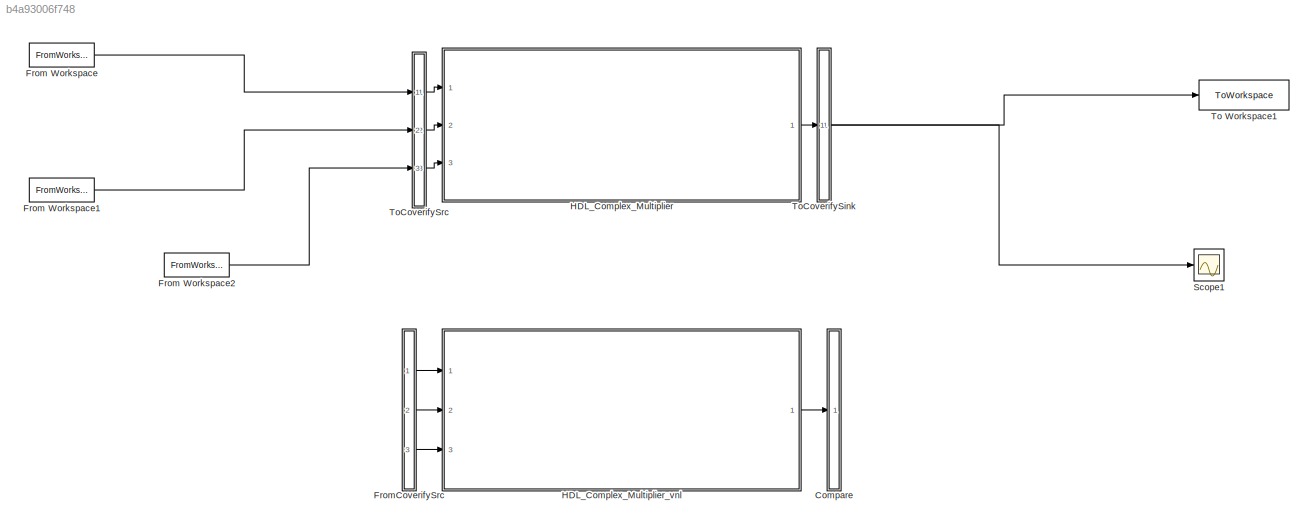
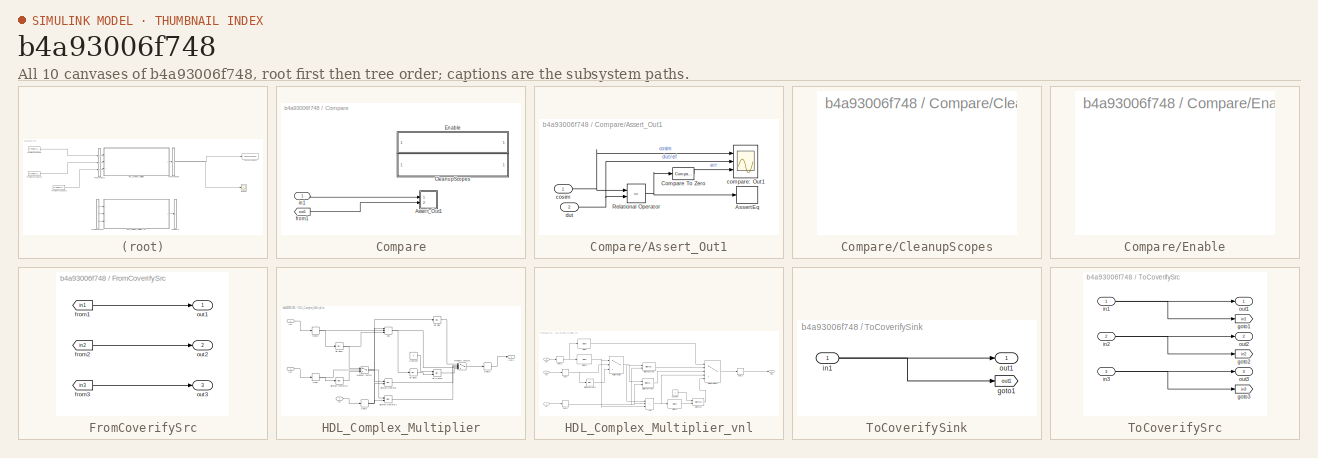
[diagram: thumbnail index - all 10 canvases of the model, root first then tree order]
MODEL slx_b4a93006f748
KIND model
CONFIG AbsTol = auto
CONFIG EnableMultiTasking = off
CONFIG FixedStep = auto
CONFIG MaxStep = auto
CONFIG MinStep = auto
CONFIG RelTol = 1e-3
CONFIG SampleTimeConstraint = Unconstrained
CONFIG SolverName = VariableStepAuto
CONFIG StartTime = 0.0
CONFIG StopTime = 10.0
BLOCK [SubSystem] Compare
  Ports = [1]
  RequestExecContextInheritance = off
BLOCK [SubSystem] Compare/Assert_Out1
  Ports = [2]
  RequestExecContextInheritance = off
BLOCK [Assertion] Compare/Assert_Out1/AssertEq
  StopWhenAssertionFail = off
BLOCK [Reference] Compare/Assert_Out1/Compare To Zero  REF=simulink/Logic and Bit
Operations/Compare
To Zero
  Ports = [1, 1]
  SourceBlock = simulink/Logic and Bit\nOperations/Compare\nTo Zero
  SourceProductBaseCode = SL
  SourceType = Compare To Zero
BLOCK [RelationalOperator] Compare/Assert_Out1/Relational Operator
  InputSameDT = off
  Operator = ==
  OutDataTypeStr = boolean
  Ports = [2, 1]
BLOCK [Scope] Compare/Assert_Out1/compare: Out1
  Floating = off
  NumInputPorts = 3
  Ports = [3]
  ScopeSpecificationString = Simulink.scopes.TimeScopeBlockCfg('CurrentConfiguration', extmgr.ConfigurationSet(extmgr.Configuration('Core','General UI',true,'MessageLogAutoOpenMode','for warn/fail messages','ShowCloseAll',true,'ShowBringAllForward',true),extmgr.Configuration('Core','Source UI',true,'PlaybackToolbar',true),extmgr.Configuration('Sources','WiredSimulink',true,'PointsPerSignal',50000,'DataLoggingDecimation','1','...<+3251ch>
BLOCK [Inport] Compare/Assert_Out1/cosim
BLOCK [Inport] Compare/Assert_Out1/dut
  Port = 2
BLOCK [SubSystem] Compare/CleanupScopes
  OpenFcn = blkName = gcb; %self block\nidx = regexp(blkName, '/CleanupScopes$', 'once');\nblkParent = blkName(1:idx-1);\nblks=find_system(blkParent, 'LookUnderMasks', 'all','blocktype', 'Scope');\nfor itr = 1:length(blks)\n	 hScopeCfg = get_param(blks{itr},'ScopeConfiguration');\n	 hScopeCfg.Visible = ~ hScopeCfg.Visible;\nend\ndrawnow;
  Ports = []
  RequestExecContextInheritance = off
BLOCK [SubSystem] Compare/Enable
  OpenFcn = blkName = gcb;\nidx = regexp(blkName, '/Enable$', 'once');\nblkParent = blkName(1:idx-1);\nblks=find_system(blkParent, 'LookUnderMasks', 'all','blocktype', 'Assertion');\ne = get_param(blks{1}, 'Enabled');\nif strcmp(e, 'on'), f= 'off';, else, f = 'on';, end\nfor ii=1:length(blks), set_param(blks{ii}, 'Enabled', f);, end\nset_param(gcb, 'MaskDisplay',['fprintf(message(''hdlcoder:cosim:vnl_dblclick_assert...<+47ch>
  Ports = []
  RequestExecContextInheritance = off
BLOCK [From] Compare/from1
  GotoTag = out1
  TagVisibility = global
BLOCK [Inport] Compare/in1
BLOCK [FromWorkspace] From Workspace
  Interpolate = off
  OutputAfterFinalValue = Setting to zero
  SampleTime = sample_time
  VariableName = data1
BLOCK [FromWorkspace] From Workspace1
  Interpolate = off
  OutputAfterFinalValue = Setting to zero
  SampleTime = sample_time
  VariableName = data2
BLOCK [FromWorkspace] From Workspace2
  Interpolate = off
  OutputAfterFinalValue = Setting to zero
  SampleTime = sample_time
  VariableName = data3
BLOCK [SubSystem] FromCoverifySrc
  Ports = [0, 3]
  RequestExecContextInheritance = off
BLOCK [From] FromCoverifySrc/from1
  GotoTag = in1
  TagVisibility = global
BLOCK [From] FromCoverifySrc/from2
  GotoTag = in2
  TagVisibility = global
BLOCK [From] FromCoverifySrc/from3
  GotoTag = in3
  TagVisibility = global
BLOCK [Outport] FromCoverifySrc/out1
BLOCK [Outport] FromCoverifySrc/out2
  Port = 2
BLOCK [Outport] FromCoverifySrc/out3
  Port = 3
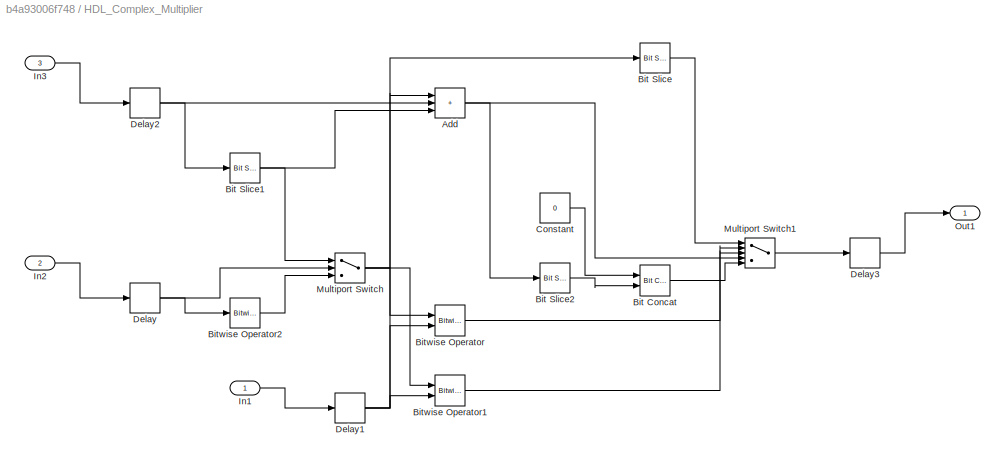
BLOCK [SubSystem] HDL_Complex_Multiplier
  Ports = [3, 1]
  RequestExecContextInheritance = off
BLOCK [Sum] HDL_Complex_Multiplier/Add
  AccumDataTypeStr = fixdt(1, 65, 0)
  IconShape = rectangular
  Inputs = +++
  OutDataTypeStr = fixdt(1, 64, 0)
  Ports = [3, 1]
  SampleTime = 5e-08
BLOCK [Reference] HDL_Complex_Multiplier/Bit Concat  REF=hdlsllib/Logic and Bit
Operations/Bit Concat
  Ports = [2, 1]
  SourceBlock = hdlsllib/Logic and Bit\nOperations/Bit Concat
  SourceProductBaseCode = SL
  SourceType = Bit Concat
BLOCK [Reference] HDL_Complex_Multiplier/Bit Slice  REF=hdlsllib/Logic and Bit
Operations/Bit Slice
  Ports = [1, 1]
  SourceBlock = hdlsllib/Logic and Bit\nOperations/Bit Slice
  SourceProductBaseCode = SL
  SourceType = Bit Slice
BLOCK [Reference] HDL_Complex_Multiplier/Bit Slice1  REF=hdlsllib/Logic and Bit
Operations/Bit Slice
  Ports = [1, 1]
  SourceBlock = hdlsllib/Logic and Bit\nOperations/Bit Slice
  SourceProductBaseCode = SL
  SourceType = Bit Slice
BLOCK [Reference] HDL_Complex_Multiplier/Bit Slice2  REF=hdlsllib/Logic and Bit
Operations/Bit Slice
  Ports = [1, 1]
  SourceBlock = hdlsllib/Logic and Bit\nOperations/Bit Slice
  SourceProductBaseCode = SL
  SourceType = Bit Slice
BLOCK [Reference] HDL_Complex_Multiplier/Bitwise Operator  REF=simulink/Logic and Bit
Operations/Bitwise
Operator
  Ports = [2, 1]
  SourceBlock = simulink/Logic and Bit\nOperations/Bitwise\nOperator
  SourceProductBaseCode = SL
  SourceType = Bitwise Operator
BLOCK [Reference] HDL_Complex_Multiplier/Bitwise Operator1  REF=simulink/Logic and Bit
Operations/Bitwise
Operator
  Ports = [2, 1]
  SourceBlock = simulink/Logic and Bit\nOperations/Bitwise\nOperator
  SourceProductBaseCode = SL
  SourceType = Bitwise Operator
BLOCK [Reference] HDL_Complex_Multiplier/Bitwise Operator2  REF=simulink/Logic and Bit
Operations/Bitwise
Operator
  Ports = [1, 1]
  SourceBlock = simulink/Logic and Bit\nOperations/Bitwise\nOperator
  SourceProductBaseCode = SL
  SourceType = Bitwise Operator
BLOCK [Constant] HDL_Complex_Multiplier/Constant
  OutDataTypeStr = fixdt(0, 64, 0)
  Value = 0
BLOCK [Delay] HDL_Complex_Multiplier/Delay
  DelayLength = double(1)
  InitialCondition = 0
  InputPortMap = u0
  Ports = [1, 1]
  SampleTime = 5e-08
BLOCK [Delay] HDL_Complex_Multiplier/Delay1
  DelayLength = double(1)
  InitialCondition = 0
  InputPortMap = u0
  Ports = [1, 1]
  SampleTime = 5e-08
BLOCK [Delay] HDL_Complex_Multiplier/Delay2
  DelayLength = double(1)
  InitialCondition = 0
  InputPortMap = u0
  Ports = [1, 1]
  SampleTime = 5e-08
BLOCK [Delay] HDL_Complex_Multiplier/Delay3
  DelayLength = double(1)
  InitialCondition = 0
  InputPortMap = u0
  Ports = [1, 1]
  SampleTime = 5e-08
BLOCK [Inport] HDL_Complex_Multiplier/In1
  OutDataTypeStr = fixdt(1, 64, 0)
  PortDimensions = 1
  SampleTime = 5e-08
BLOCK [Inport] HDL_Complex_Multiplier/In2
  OutDataTypeStr = fixdt(1, 64, 0)
  Port = 2
  PortDimensions = 1
  SampleTime = 5e-08
BLOCK [Inport] HDL_Complex_Multiplier/In3
  OutDataTypeStr = fixdt(0, 3, 0)
  Port = 3
  PortDimensions = 1
  SampleTime = 5e-08
BLOCK [MultiPortSwitch] HDL_Complex_Multiplier/Multiport Switch
  DataPortOrder = Zero-based contiguous
  DiagnosticForDefault = None
  InputSameDT = off
  Inputs = 2
  OutDataTypeStr = fixdt(1, 64, 0)
  Ports = [3, 1]
  SampleTime = 5e-08
  SaturateOnIntegerOverflow = off
  zeroidx = on
BLOCK [MultiPortSwitch] HDL_Complex_Multiplier/Multiport Switch1
  DataPortOrder = Zero-based contiguous
  DiagnosticForDefault = None
  InputSameDT = off
  Inputs = 4
  OutDataTypeStr = fixdt(1, 64, 0)
  Ports = [5, 1]
  SampleTime = 5e-08
  SaturateOnIntegerOverflow = off
  zeroidx = on
BLOCK [Outport] HDL_Complex_Multiplier/Out1
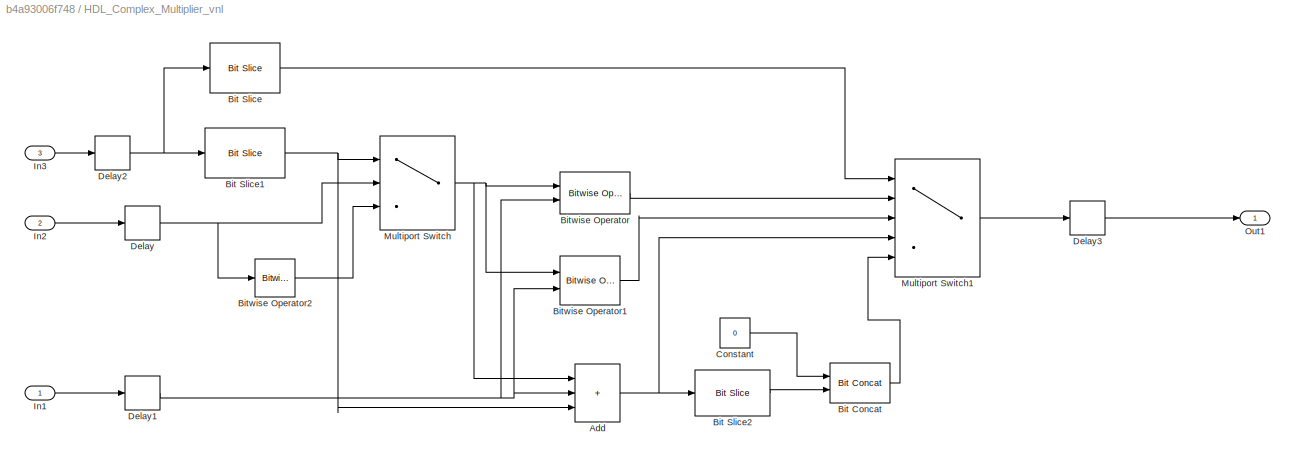
BLOCK [SubSystem] HDL_Complex_Multiplier_vnl
  Ports = [3, 1]
  RequestExecContextInheritance = off
BLOCK [Sum] HDL_Complex_Multiplier_vnl/Add
  IconShape = rectangular
  Inputs = +++
  OutDataTypeStr = int64
  Ports = [3, 1]
BLOCK [Reference] HDL_Complex_Multiplier_vnl/Bit Concat  REF=hdlsllib/Logic and Bit
Operations/Bit Concat
  Ports = [2, 1]
  SourceBlock = hdlsllib/Logic and Bit\nOperations/Bit Concat
  SourceProductBaseCode = SL
  SourceType = Bit Concat
BLOCK [Reference] HDL_Complex_Multiplier_vnl/Bit Slice  REF=hdlsllib/Logic and Bit
Operations/Bit Slice
  Ports = [1, 1]
  SourceBlock = hdlsllib/Logic and Bit\nOperations/Bit Slice
  SourceProductBaseCode = SL
  SourceType = Bit Slice
BLOCK [Reference] HDL_Complex_Multiplier_vnl/Bit Slice1  REF=hdlsllib/Logic and Bit
Operations/Bit Slice
  Ports = [1, 1]
  SourceBlock = hdlsllib/Logic and Bit\nOperations/Bit Slice
  SourceProductBaseCode = SL
  SourceType = Bit Slice
BLOCK [Reference] HDL_Complex_Multiplier_vnl/Bit Slice2  REF=hdlsllib/Logic and Bit
Operations/Bit Slice
  Ports = [1, 1]
  SourceBlock = hdlsllib/Logic and Bit\nOperations/Bit Slice
  SourceProductBaseCode = SL
  SourceType = Bit Slice
BLOCK [Reference] HDL_Complex_Multiplier_vnl/Bitwise Operator  REF=simulink/Logic and Bit
Operations/Bitwise
Operator
  Ports = [2, 1]
  SourceBlock = simulink/Logic and Bit\nOperations/Bitwise\nOperator
  SourceProductBaseCode = SL
  SourceType = Bitwise Operator
BLOCK [Reference] HDL_Complex_Multiplier_vnl/Bitwise Operator1  REF=simulink/Logic and Bit
Operations/Bitwise
Operator
  Ports = [2, 1]
  SourceBlock = simulink/Logic and Bit\nOperations/Bitwise\nOperator
  SourceProductBaseCode = SL
  SourceType = Bitwise Operator
BLOCK [Reference] HDL_Complex_Multiplier_vnl/Bitwise Operator2  REF=simulink/Logic and Bit
Operations/Bitwise
Operator
  Ports = [1, 1]
  SourceBlock = simulink/Logic and Bit\nOperations/Bitwise\nOperator
  SourceProductBaseCode = SL
  SourceType = Bitwise Operator
BLOCK [Constant] HDL_Complex_Multiplier_vnl/Constant
  OutDataTypeStr = uint64
  OutMax = 63
  OutMin = 0
  Value = 0
BLOCK [Delay] HDL_Complex_Multiplier_vnl/Delay
  DelayLength = 1
  InitialCondition = 0
  InputPortMap = u0
  Ports = [1, 1]
BLOCK [Delay] HDL_Complex_Multiplier_vnl/Delay1
  DelayLength = 1
  InitialCondition = 0
  InputPortMap = u0
  Ports = [1, 1]
BLOCK [Delay] HDL_Complex_Multiplier_vnl/Delay2
  DelayLength = 1
  InitialCondition = 0
  InputPortMap = u0
  Ports = [1, 1]
BLOCK [Delay] HDL_Complex_Multiplier_vnl/Delay3
  DelayLength = 1
  InitialCondition = 0
  InputPortMap = u0
  Ports = [1, 1]
BLOCK [Inport] HDL_Complex_Multiplier_vnl/In1
BLOCK [Inport] HDL_Complex_Multiplier_vnl/In2
  Port = 2
BLOCK [Inport] HDL_Complex_Multiplier_vnl/In3
  Port = 3
BLOCK [MultiPortSwitch] HDL_Complex_Multiplier_vnl/Multiport Switch
  DataPortOrder = Zero-based contiguous
  InputSameDT = off
  Inputs = 2
  Ports = [3, 1]
  SaturateOnIntegerOverflow = off
  zeroidx = on
BLOCK [MultiPortSwitch] HDL_Complex_Multiplier_vnl/Multiport Switch1
  DataPortOrder = Zero-based contiguous
  InputSameDT = off
  Inputs = 4
  OutDataTypeStr = int64
  Ports = [5, 1]
  SaturateOnIntegerOverflow = off
  zeroidx = on
BLOCK [Outport] HDL_Complex_Multiplier_vnl/Out1
BLOCK [Scope] Scope1
  Floating = off
  NumInputPorts = 1
  Ports = [1]
  ScopeSpecificationString = Simulink.scopes.TimeScopeBlockCfg('CurrentConfiguration', extmgr.ConfigurationSet(extmgr.Configuration('Core','General UI',true),extmgr.Configuration('Core','Source UI',true),extmgr.Configuration('Sources','WiredSimulink',true,'DataLoggingVariableName','ScopeData1'),extmgr.Configuration('Visuals','Time Domain',true,'SerializedDisplays',{struct('MinYLimReal','-120.75','MaxYLimReal','226.75','YLabel...<+1432ch>
BLOCK [ToWorkspace] To Workspace1
  FixptAsFi = on
  MaxDataPoints = inf
  Ports = [1]
  SampleTime = -1
  SaveFormat = Structure With Time
  VariableName = hw_out
BLOCK [SubSystem] ToCoverifySink
  Ports = [1, 1]
  RequestExecContextInheritance = off
BLOCK [Goto] ToCoverifySink/goto1
  GotoTag = out1
  TagVisibility = global
BLOCK [Inport] ToCoverifySink/in1
BLOCK [Outport] ToCoverifySink/out1
BLOCK [SubSystem] ToCoverifySrc
  Ports = [3, 3]
  RequestExecContextInheritance = off
BLOCK [Goto] ToCoverifySrc/goto1
  GotoTag = in1
  TagVisibility = global
BLOCK [Goto] ToCoverifySrc/goto2
  GotoTag = in2
  TagVisibility = global
BLOCK [Goto] ToCoverifySrc/goto3
  GotoTag = in3
  TagVisibility = global
BLOCK [Inport] ToCoverifySrc/in1
BLOCK [Inport] ToCoverifySrc/in2
  Port = 2
BLOCK [Inport] ToCoverifySrc/in3
  Port = 3
BLOCK [Outport] ToCoverifySrc/out1
BLOCK [Outport] ToCoverifySrc/out2
  Port = 2
BLOCK [Outport] ToCoverifySrc/out3
  Port = 3
LINE Compare/Assert_Out1/Compare To Zero:1 -> Compare/Assert_Out1/compare: Out1:3
NET Compare/Assert_Out1/Relational Operator:1 -> Compare/Assert_Out1/AssertEq:1, Compare/Assert_Out1/Compare To Zero:1
NET Compare/Assert_Out1/cosim:1 -> Compare/Assert_Out1/Relational Operator:1, Compare/Assert_Out1/compare: Out1:1
NET Compare/Assert_Out1/dut:1 -> Compare/Assert_Out1/Relational Operator:2, Compare/Assert_Out1/compare: Out1:2
LINE Compare/from1:1 -> Compare/Assert_Out1:2
LINE Compare/in1:1 -> Compare/Assert_Out1:1
LINE From Workspace1:1 -> ToCoverifySrc:2
LINE From Workspace2:1 -> ToCoverifySrc:3
LINE From Workspace:1 -> ToCoverifySrc:1
LINE FromCoverifySrc/from1:1 -> FromCoverifySrc/out1:1
LINE FromCoverifySrc/from2:1 -> FromCoverifySrc/out2:1
LINE FromCoverifySrc/from3:1 -> FromCoverifySrc/out3:1
LINE FromCoverifySrc:1 -> HDL_Complex_Multiplier_vnl:1
LINE FromCoverifySrc:2 -> HDL_Complex_Multiplier_vnl:2
LINE FromCoverifySrc:3 -> HDL_Complex_Multiplier_vnl:3
NET HDL_Complex_Multiplier/Add:1 -> HDL_Complex_Multiplier/Bit Slice2:1, HDL_Complex_Multiplier/Multiport Switch1:4
LINE HDL_Complex_Multiplier/Bit Concat:1 -> HDL_Complex_Multiplier/Multiport Switch1:5
NET HDL_Complex_Multiplier/Bit Slice1:1 -> HDL_Complex_Multiplier/Add:3, HDL_Complex_Multiplier/Multiport Switch:1
LINE HDL_Complex_Multiplier/Bit Slice2:1 -> HDL_Complex_Multiplier/Bit Concat:2
LINE HDL_Complex_Multiplier/Bit Slice:1 -> HDL_Complex_Multiplier/Multiport Switch1:1
LINE HDL_Complex_Multiplier/Bitwise Operator1:1 -> HDL_Complex_Multiplier/Multiport Switch1:3
LINE HDL_Complex_Multiplier/Bitwise Operator2:1 -> HDL_Complex_Multiplier/Multiport Switch:3
LINE HDL_Complex_Multiplier/Bitwise Operator:1 -> HDL_Complex_Multiplier/Multiport Switch1:2
LINE HDL_Complex_Multiplier/Constant:1 -> HDL_Complex_Multiplier/Bit Concat:1
NET HDL_Complex_Multiplier/Delay1:1 -> HDL_Complex_Multiplier/Add:2, HDL_Complex_Multiplier/Bitwise Operator1:2, HDL_Complex_Multiplier/Bitwise Operator:2
NET HDL_Complex_Multiplier/Delay2:1 -> HDL_Complex_Multiplier/Bit Slice1:1, HDL_Complex_Multiplier/Bit Slice:1
LINE HDL_Complex_Multiplier/Delay3:1 -> HDL_Complex_Multiplier/Out1:1
NET HDL_Complex_Multiplier/Delay:1 -> HDL_Complex_Multiplier/Bitwise Operator2:1, HDL_Complex_Multiplier/Multiport Switch:2
LINE HDL_Complex_Multiplier/In1:1 -> HDL_Complex_Multiplier/Delay1:1
LINE HDL_Complex_Multiplier/In2:1 -> HDL_Complex_Multiplier/Delay:1
LINE HDL_Complex_Multiplier/In3:1 -> HDL_Complex_Multiplier/Delay2:1
LINE HDL_Complex_Multiplier/Multiport Switch1:1 -> HDL_Complex_Multiplier/Delay3:1
NET HDL_Complex_Multiplier/Multiport Switch:1 -> HDL_Complex_Multiplier/Add:1, HDL_Complex_Multiplier/Bitwise Operator1:1, HDL_Complex_Multiplier/Bitwise Operator:1
LINE HDL_Complex_Multiplier:1 -> ToCoverifySink:1
NET HDL_Complex_Multiplier_vnl/Add:1 -> HDL_Complex_Multiplier_vnl/Bit Slice2:1, HDL_Complex_Multiplier_vnl/Multiport Switch1:4
LINE HDL_Complex_Multiplier_vnl/Bit Concat:1 -> HDL_Complex_Multiplier_vnl/Multiport Switch1:5
NET HDL_Complex_Multiplier_vnl/Bit Slice1:1 -> HDL_Complex_Multiplier_vnl/Add:3, HDL_Complex_Multiplier_vnl/Multiport Switch:1
LINE HDL_Complex_Multiplier_vnl/Bit Slice2:1 -> HDL_Complex_Multiplier_vnl/Bit Concat:2
LINE HDL_Complex_Multiplier_vnl/Bit Slice:1 -> HDL_Complex_Multiplier_vnl/Multiport Switch1:1
LINE HDL_Complex_Multiplier_vnl/Bitwise Operator1:1 -> HDL_Complex_Multiplier_vnl/Multiport Switch1:3
LINE HDL_Complex_Multiplier_vnl/Bitwise Operator2:1 -> HDL_Complex_Multiplier_vnl/Multiport Switch:3
LINE HDL_Complex_Multiplier_vnl/Bitwise Operator:1 -> HDL_Complex_Multiplier_vnl/Multiport Switch1:2
LINE HDL_Complex_Multiplier_vnl/Constant:1 -> HDL_Complex_Multiplier_vnl/Bit Concat:1
NET HDL_Complex_Multiplier_vnl/Delay1:1 -> HDL_Complex_Multiplier_vnl/Add:2, HDL_Complex_Multiplier_vnl/Bitwise Operator1:2, HDL_Complex_Multiplier_vnl/Bitwise Operator:2
NET HDL_Complex_Multiplier_vnl/Delay2:1 -> HDL_Complex_Multiplier_vnl/Bit Slice1:1, HDL_Complex_Multiplier_vnl/Bit Slice:1
LINE HDL_Complex_Multiplier_vnl/Delay3:1 -> HDL_Complex_Multiplier_vnl/Out1:1
NET HDL_Complex_Multiplier_vnl/Delay:1 -> HDL_Complex_Multiplier_vnl/Bitwise Operator2:1, HDL_Complex_Multiplier_vnl/Multiport Switch:2
LINE HDL_Complex_Multiplier_vnl/In1:1 -> HDL_Complex_Multiplier_vnl/Delay1:1
LINE HDL_Complex_Multiplier_vnl/In2:1 -> HDL_Complex_Multiplier_vnl/Delay:1
LINE HDL_Complex_Multiplier_vnl/In3:1 -> HDL_Complex_Multiplier_vnl/Delay2:1
LINE HDL_Complex_Multiplier_vnl/Multiport Switch1:1 -> HDL_Complex_Multiplier_vnl/Delay3:1
NET HDL_Complex_Multiplier_vnl/Multiport Switch:1 -> HDL_Complex_Multiplier_vnl/Add:1, HDL_Complex_Multiplier_vnl/Bitwise Operator1:1, HDL_Complex_Multiplier_vnl/Bitwise Operator:1
LINE HDL_Complex_Multiplier_vnl:1 -> Compare:1
NET ToCoverifySink/in1:1 -> ToCoverifySink/goto1:1, ToCoverifySink/out1:1
NET ToCoverifySink:1 -> Scope1:1, To Workspace1:1
NET ToCoverifySrc/in1:1 -> ToCoverifySrc/goto1:1, ToCoverifySrc/out1:1
NET ToCoverifySrc/in2:1 -> ToCoverifySrc/goto2:1, ToCoverifySrc/out2:1
NET ToCoverifySrc/in3:1 -> ToCoverifySrc/goto3:1, ToCoverifySrc/out3:1
LINE ToCoverifySrc:1 -> HDL_Complex_Multiplier:1
LINE ToCoverifySrc:2 -> HDL_Complex_Multiplier:2
LINE ToCoverifySrc:3 -> HDL_Complex_Multiplier:3
note: NET lines group one-source signal fan-out (src -> all destinations, sorted); 1:1 wires keep LINE
